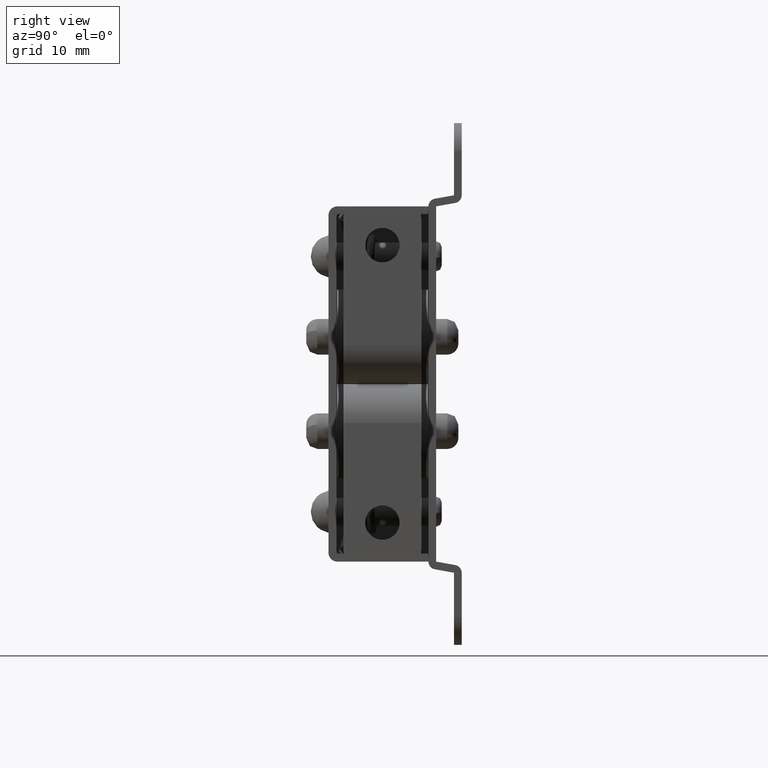
[diagram: clean part render]
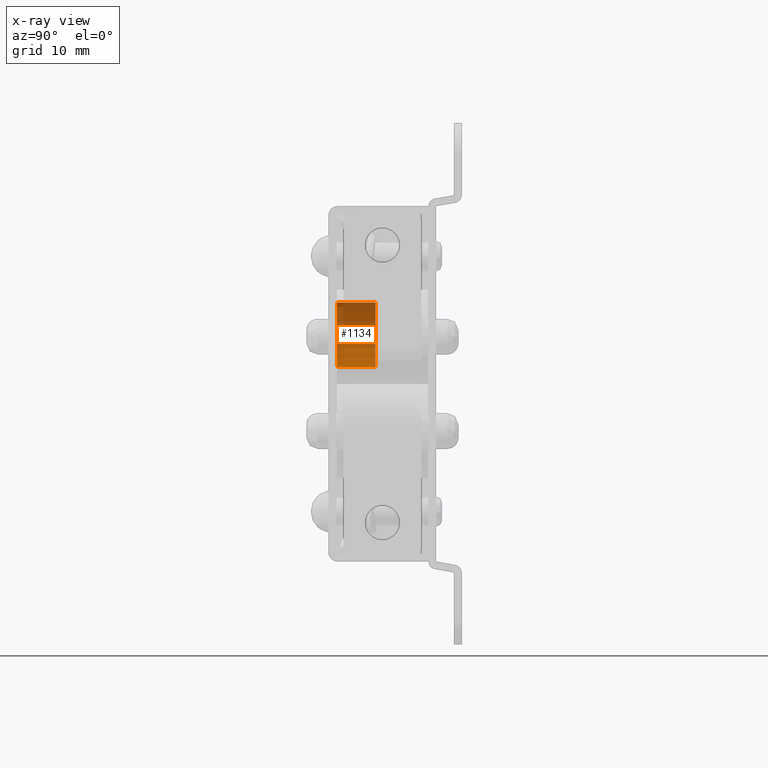
[diagram: x-ray — body ghosted, one internal face saturated and labeled with its STEP entity id]
A machine part, right view, then the same camera in x-ray: the body is ghosted and one INTERNAL B-rep face — a face not visible from any outside direction — is saturated and labeled: STEP entity #1134.
In plain terms, the highlighted face is a freeform B-spline surface patch.
Its self-contained STEP definition (entity closure, byte-faithful):
#941=CARTESIAN_POINT('',(0.704891411328930,-11.250000000000810,-18.494403711737242));
#942=VERTEX_POINT('',#941);
#955=CARTESIAN_POINT('',(0.704891411582695,-7.749999999999998,-18.494403712037300));
#956=VERTEX_POINT('',#955);
#957=CARTESIAN_POINT('',(0.704891411582695,-7.749999999999998,-18.494403712037300));
#958=CARTESIAN_POINT('',(0.704891411328930,-11.250000000000810,-18.494403711737242));
#959=QUASI_UNIFORM_CURVE('',1,(#957,#958),.UNSPECIFIED.,.F.,.U.);
#960=EDGE_CURVE('',#956,#942,#959,.T.);
#1008=CARTESIAN_POINT('',(1.024496111207864,-7.749999999999999,-12.667159025253040));
#1009=VERTEX_POINT('',#1008);
#1020=CARTESIAN_POINT('',(1.024496110956549,-11.249999999999410,-12.667159025491530));
#1021=VERTEX_POINT('',#1020);
#1022=CARTESIAN_POINT('',(1.024496111207864,-7.749999999999999,-12.667159025253040));
#1023=CARTESIAN_POINT('',(1.024496110956549,-11.249999999999410,-12.667159025491530));
#1024=QUASI_UNIFORM_CURVE('',1,(#1022,#1023),.UNSPECIFIED.,.F.,.U.);
#1025=EDGE_CURVE('',#1009,#1021,#1024,.T.);
#1072=CARTESIAN_POINT('',(1.024496053301546,-7.662499999999999,-12.667158923197780));
#1073=CARTESIAN_POINT('',(-1.886795522244046,-7.662500000000001,-15.429871471766083));
#1074=CARTESIAN_POINT('',(0.704891517503025,-7.662500000000000,-18.494403663123610));
#1075=CARTESIAN_POINT('',(1.024496053301546,-11.339687500000000,-12.667158923197780));
#1076=CARTESIAN_POINT('',(-1.886795522244046,-11.339687500000000,-15.429871471766083));
#1077=CARTESIAN_POINT('',(0.704891517503025,-11.339687500000000,-18.494403663123610));
#1085=(BOUNDED_SURFACE()B_SPLINE_SURFACE(2,1,((#1072,#1075),(#1073,#1076),(#1074,#1077)),.UNSPECIFIED.,.F.,.F.,.U.)B_SPLINE_SURFACE_WITH_KNOTS((3,3),(2,2),(0.0,6.758110124512356),(0.0,3.677187500000004),.UNSPECIFIED.)GEOMETRIC_REPRESENTATION_ITEM()RATIONAL_B_SPLINE_SURFACE(((1.0,1.0),(0.718822509939086,0.718822509939086),(0.977505800795127,0.977505800795127)))REPRESENTATION_ITEM('')SURFACE());
#1086=CARTESIAN_POINT('',(-0.299996999999976,-11.250000000000000,-15.750000456178570));
#1087=VERTEX_POINT('',#1086);
#1088=CARTESIAN_POINT('',(-0.299996999999976,-11.250000000000000,-15.750000456178570));
#1089=CARTESIAN_POINT('',(-0.300058209088236,-11.250000000000080,-16.076324375759139));
#1090=CARTESIAN_POINT('',(-0.237046158880090,-11.250000000000330,-16.620155061573922));
#1091=CARTESIAN_POINT('',(-0.020285357490188,-11.250000000000380,-17.303504168042011));
#1092=CARTESIAN_POINT('',(0.267395470879766,-11.250000000000730,-17.907926164160902));
#1093=CARTESIAN_POINT('',(0.524242597842948,-11.250000000000661,-18.280859634961200));
#1094=CARTESIAN_POINT('',(0.704891411328930,-11.250000000000810,-18.494403711737242));
#1095=B_SPLINE_CURVE_WITH_KNOTS('',3,(#1088,#1089,#1090,#1091,#1092,#1093,#1094),.UNSPECIFIED.,.F.,.U.,(4,1,1,1,4),(8.414740E-009,0.978961136136661,1.631590453116583,2.144384570454093,2.983491999330575),.UNSPECIFIED.);
#1096=EDGE_CURVE('',#1087,#942,#1095,.T.);
#1097=ORIENTED_EDGE('',*,*,#1096,.F.);
#1098=CARTESIAN_POINT('',(1.024496110956549,-11.249999999999410,-12.667159025491530));
#1099=CARTESIAN_POINT('',(0.724648529994634,-11.249999999999440,-12.951473990302620));
#1100=CARTESIAN_POINT('',(0.332394886176061,-11.249999999999600,-13.451379224755231));
#1101=CARTESIAN_POINT('',(-0.062138867313221,-11.249999999999689,-14.281244298653521));
#1102=CARTESIAN_POINT('',(-0.256979748882940,-11.249999999999810,-14.995480555632000));
#1103=CARTESIAN_POINT('',(-0.300007075237127,-11.250000000000041,-15.516461849018640));
#1104=CARTESIAN_POINT('',(-0.299996999999976,-11.250000000000000,-15.750000456178570));
#1105=B_SPLINE_CURVE_WITH_KNOTS('',3,(#1098,#1099,#1100,#1101,#1102,#1103,#1104),.UNSPECIFIED.,.F.,.U.,(4,1,1,1,4),(7.326102E-009,1.239569776330931,1.886291101766307,2.748606919133762,3.449230424693900),.UNSPECIFIED.);
#1106=EDGE_CURVE('',#1021,#1087,#1105,.T.);
#1107=ORIENTED_EDGE('',*,*,#1106,.F.);
#1108=ORIENTED_EDGE('',*,*,#1025,.F.);
#1109=CARTESIAN_POINT('',(-0.299996999999976,-7.749999999999999,-15.750000456178570));
#1110=VERTEX_POINT('',#1109);
#1111=CARTESIAN_POINT('',(1.024496111207864,-7.749999999999999,-12.667159025253040));
#1112=CARTESIAN_POINT('',(0.802932422170006,-7.749999999999984,-12.877349364782450));
#1113=CARTESIAN_POINT('',(0.393734319516401,-7.750000000000036,-13.359541425252109));
#1114=CARTESIAN_POINT('',(-0.033691187653981,-7.749999999999954,-14.176686959901410));
#1115=CARTESIAN_POINT('',(-0.256960040706453,-7.750000000000084,-14.995486482418370));
#1116=CARTESIAN_POINT('',(-0.300011101344572,-7.749999999999919,-15.516460906263330));
#1117=CARTESIAN_POINT('',(-0.299996999999976,-7.749999999999999,-15.750000456178570));
#1118=B_SPLINE_CURVE_WITH_KNOTS('',3,(#1111,#1112,#1113,#1114,#1115,#1116,#1117),.UNSPECIFIED.,.F.,.U.,(4,1,1,1,4),(7.325447E-009,0.916202524812595,1.886291101955715,2.748606919409858,3.449230425040370),.UNSPECIFIED.);
#1119=EDGE_CURVE('',#1009,#1110,#1118,.T.);
#1120=ORIENTED_EDGE('',*,*,#1119,.T.);
#1121=CARTESIAN_POINT('',(-0.299996999999976,-7.749999999999999,-15.750000456178570));
#1122=CARTESIAN_POINT('',(-0.300005513774412,-7.749999999999989,-15.967545117629911));
#1123=CARTESIAN_POINT('',(-0.262943811135599,-7.750000000000008,-16.449254386543320));
#1124=CARTESIAN_POINT('',(-0.072352785959885,-7.750000000000003,-17.205952751051679));
#1125=CARTESIAN_POINT('',(0.263387529356774,-7.750000000000000,-17.911298450229840));
#1126=CARTESIAN_POINT('',(0.564410598407722,-7.749999999999997,-18.328299187414171));
#1127=CARTESIAN_POINT('',(0.704891411582695,-7.749999999999998,-18.494403712037300));
#1128=B_SPLINE_CURVE_WITH_KNOTS('',3,(#1121,#1122,#1123,#1124,#1125,#1126,#1127),.UNSPECIFIED.,.F.,.U.,(4,1,1,1,4),(8.415149E-009,0.652638575082507,1.445134820219129,2.330853433055934,2.983491999723569),.UNSPECIFIED.);
#1129=EDGE_CURVE('',#1110,#956,#1128,.T.);
#1130=ORIENTED_EDGE('',*,*,#1129,.T.);
#1131=ORIENTED_EDGE('',*,*,#960,.T.);
#1132=EDGE_LOOP('',(#1097,#1107,#1108,#1120,#1130,#1131));
#1133=FACE_OUTER_BOUND('',#1132,.T.);
#1134=ADVANCED_FACE('',(#1133),#1085,.T.);